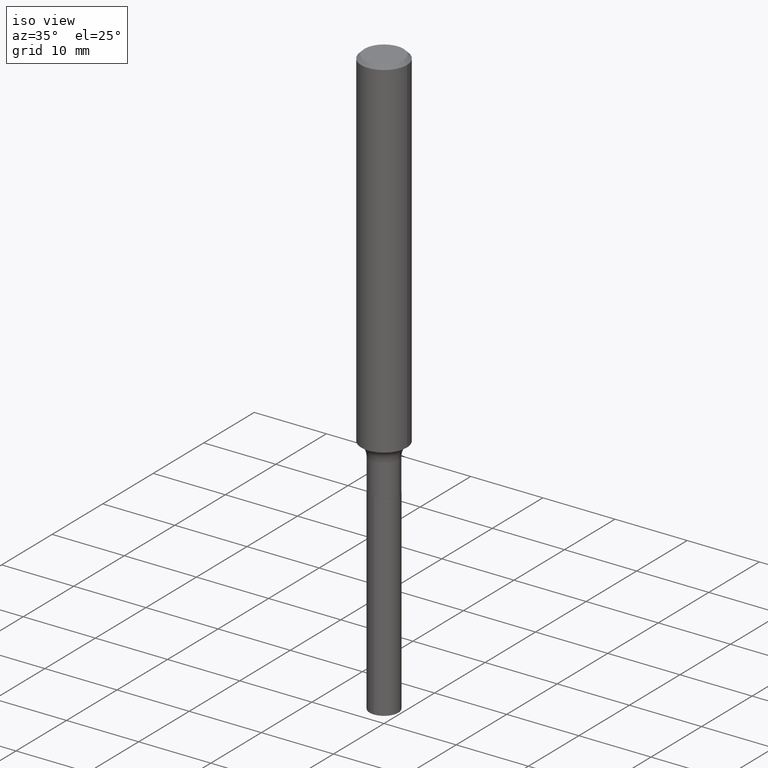
[diagram: clean part render]
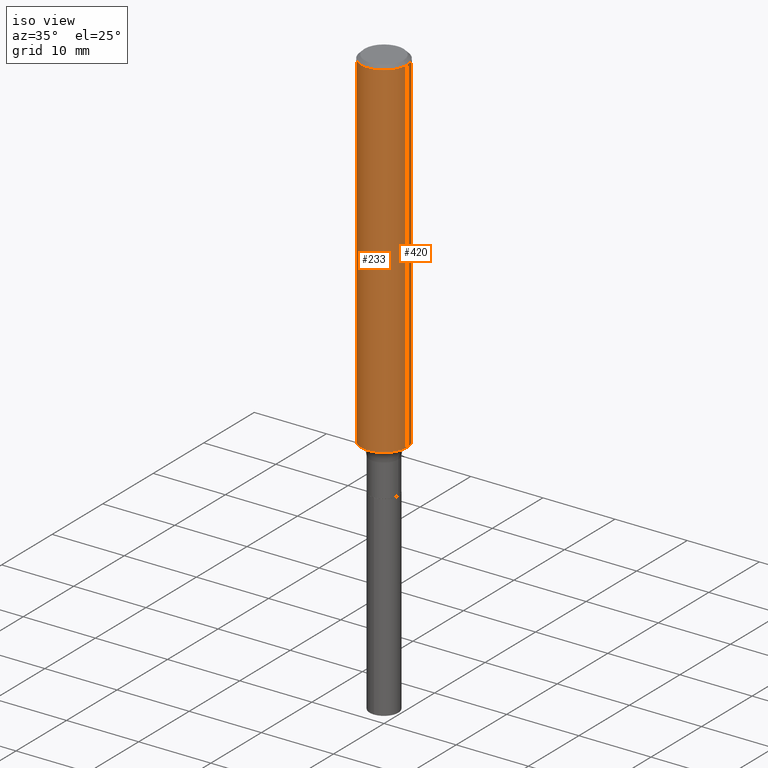
[diagram: same view with one multi-face feature highlighted, each face labeled with its STEP entity id]
A machine part, iso view. The highlighted faces form ONE feature: a constant-radius fillet chain: 2 tangent blend faces with common blend radius 3.175 mm. The faces share edges in the B-rep.
Their STEP definitions:
[1] entity #233 (Cylinder):
#16 = DIRECTION ( 'NONE',  ( -2.445468806185136597E-29, 3.491481338843145583E-15, 1.000000000000000000 ) ) ;
#18 = CIRCLE ( 'NONE', #150, 0.1250000000000000000 ) ;
#39 = VECTOR ( 'NONE', #476, 39.37007874015748143 ) ;
#42 = ORIENTED_EDGE ( 'NONE', *, *, #341, .T. ) ;
#58 = DIRECTION ( 'NONE',  ( 1.000000000000000000, -6.982962677686262766E-15, 0.000000000000000000 ) ) ;
#65 = CARTESIAN_POINT ( 'NONE',  ( -0.1250000000000001388, 8.881784197001262184E-16, -6.148668862818638533E-30 ) ) ;
#68 = DIRECTION ( 'NONE',  ( 1.000000000000000000, -6.982962677686266711E-15, 4.876176775795935793E-29 ) ) ;
#79 = DIRECTION ( 'NONE',  ( -2.445468806185136597E-29, 3.491481338843145583E-15, 1.000000000000000000 ) ) ;
#91 = VERTEX_POINT ( 'NONE', #273 ) ;
#127 = DIRECTION ( 'NONE',  ( -2.445468806185136597E-29, 3.491481338843145583E-15, 1.000000000000000000 ) ) ;
#129 = CARTESIAN_POINT ( 'NONE',  ( -0.1250000000000000000, -2.470309355251892181E-15, -0.01875000000000014155 ) ) ;
#150 = AXIS2_PLACEMENT_3D ( 'NONE', #191, #79, #377 ) ;
#191 = CARTESIAN_POINT ( 'NONE',  ( 4.585254011597165626E-31, -6.546527510330947764E-17, -0.01875000000000014155 ) ) ;
#200 = LINE ( 'NONE', #65, #487 ) ;
#203 = CARTESIAN_POINT ( 'NONE',  ( 4.658785000533512367E-29, -6.651510274800731204E-15, -1.905068258793735092 ) ) ;
#220 = EDGE_CURVE ( 'NONE', #451, #91, #481, .T. ) ;
#233 = ADVANCED_FACE ( 'NONE', ( #436 ), #438, .T. ) ;
#240 = AXIS2_PLACEMENT_3D ( 'NONE', #465, #127, #68 ) ;
#246 = CARTESIAN_POINT ( 'NONE',  ( -0.1250000000000003331, -5.763331855100603605E-15, -1.905068258793735092 ) ) ;
#247 = CARTESIAN_POINT ( 'NONE',  ( 0.1250000000000000000, -9.383356098140928781E-16, -0.01875000000000014155 ) ) ;
#248 = DIRECTION ( 'NONE',  ( -2.445468806185136877E-29, 3.491481338843145188E-15, 1.000000000000000000 ) ) ;
#254 = AXIS2_PLACEMENT_3D ( 'NONE', #203, #16, #58 ) ;
#264 = ORIENTED_EDGE ( 'NONE', *, *, #379, .F. ) ;
#273 = CARTESIAN_POINT ( 'NONE',  ( 0.1250000000000003331, -7.524380609511516120E-15, -1.905068258793735092 ) ) ;
#281 = ORIENTED_EDGE ( 'NONE', *, *, #220, .T. ) ;
#313 = ORIENTED_EDGE ( 'NONE', *, *, #454, .F. ) ;
#323 = CARTESIAN_POINT ( 'NONE',  ( 0.1250000000000001388, -8.728703347107843249E-16, 6.095220969744926748E-30 ) ) ;
#341 = EDGE_CURVE ( 'NONE', #91, #354, #357, .T. ) ;
#354 = VERTEX_POINT ( 'NONE', #247 ) ;
#357 = LINE ( 'NONE', #323, #39 ) ;
#377 = DIRECTION ( 'NONE',  ( 1.000000000000000000, -6.982962677686266711E-15, 0.000000000000000000 ) ) ;
#379 = EDGE_CURVE ( 'NONE', #456, #354, #18, .T. ) ;
#436 = FACE_OUTER_BOUND ( 'NONE', #449, .T. ) ;
#438 = CYLINDRICAL_SURFACE ( 'NONE', #240, 0.1250000000000001388 ) ;
#449 = EDGE_LOOP ( 'NONE', ( #313, #281, #42, #264 ) ) ;
#451 = VERTEX_POINT ( 'NONE', #246 ) ;
#454 = EDGE_CURVE ( 'NONE', #451, #456, #200, .T. ) ;
#456 = VERTEX_POINT ( 'NONE', #129 ) ;
#465 = CARTESIAN_POINT ( 'NONE',  ( 0.000000000000000000, 0.000000000000000000, 0.000000000000000000 ) ) ;
#476 = DIRECTION ( 'NONE',  ( -2.445468806185136877E-29, 3.491481338843145188E-15, 1.000000000000000000 ) ) ;
#481 = CIRCLE ( 'NONE', #254, 0.1250000000000002776 ) ;
#487 = VECTOR ( 'NONE', #248, 39.37007874015748143 ) ;
[2] entity #420 (Cylinder):
#17 = EDGE_LOOP ( 'NONE', ( #275, #466, #384, #459 ) ) ;
#39 = VECTOR ( 'NONE', #476, 39.37007874015748143 ) ;
#47 = DIRECTION ( 'NONE',  ( 1.000000000000000000, -6.982962677686262766E-15, 0.000000000000000000 ) ) ;
#65 = CARTESIAN_POINT ( 'NONE',  ( -0.1250000000000001388, 8.881784197001262184E-16, -6.148668862818638533E-30 ) ) ;
#83 = CARTESIAN_POINT ( 'NONE',  ( 4.658785000533512367E-29, -6.651510274800731204E-15, -1.905068258793735092 ) ) ;
#91 = VERTEX_POINT ( 'NONE', #273 ) ;
#97 = EDGE_CURVE ( 'NONE', #91, #451, #141, .T. ) ;
#129 = CARTESIAN_POINT ( 'NONE',  ( -0.1250000000000000000, -2.470309355251892181E-15, -0.01875000000000014155 ) ) ;
#141 = CIRCLE ( 'NONE', #369, 0.1250000000000002776 ) ;
#142 = AXIS2_PLACEMENT_3D ( 'NONE', #359, #421, #238 ) ;
#166 = FACE_OUTER_BOUND ( 'NONE', #17, .T. ) ;
#172 = CARTESIAN_POINT ( 'NONE',  ( 4.585254011597165626E-31, -6.546527510330947764E-17, -0.01875000000000014155 ) ) ;
#200 = LINE ( 'NONE', #65, #487 ) ;
#219 = DIRECTION ( 'NONE',  ( 1.000000000000000000, -6.982962677686266711E-15, 0.000000000000000000 ) ) ;
#229 = CIRCLE ( 'NONE', #364, 0.1250000000000000000 ) ;
#234 = DIRECTION ( 'NONE',  ( -2.445468806185136597E-29, 3.491481338843145583E-15, 1.000000000000000000 ) ) ;
#238 = DIRECTION ( 'NONE',  ( 1.000000000000000000, -6.982962677686266711E-15, 4.876176775795935793E-29 ) ) ;
#246 = CARTESIAN_POINT ( 'NONE',  ( -0.1250000000000003331, -5.763331855100603605E-15, -1.905068258793735092 ) ) ;
#247 = CARTESIAN_POINT ( 'NONE',  ( 0.1250000000000000000, -9.383356098140928781E-16, -0.01875000000000014155 ) ) ;
#248 = DIRECTION ( 'NONE',  ( -2.445468806185136877E-29, 3.491481338843145188E-15, 1.000000000000000000 ) ) ;
#273 = CARTESIAN_POINT ( 'NONE',  ( 0.1250000000000003331, -7.524380609511516120E-15, -1.905068258793735092 ) ) ;
#275 = ORIENTED_EDGE ( 'NONE', *, *, #97, .T. ) ;
#323 = CARTESIAN_POINT ( 'NONE',  ( 0.1250000000000001388, -8.728703347107843249E-16, 6.095220969744926748E-30 ) ) ;
#325 = DIRECTION ( 'NONE',  ( -2.445468806185136597E-29, 3.491481338843145583E-15, 1.000000000000000000 ) ) ;
#341 = EDGE_CURVE ( 'NONE', #91, #354, #357, .T. ) ;
#354 = VERTEX_POINT ( 'NONE', #247 ) ;
#355 = EDGE_CURVE ( 'NONE', #354, #456, #229, .T. ) ;
#357 = LINE ( 'NONE', #323, #39 ) ;
#359 = CARTESIAN_POINT ( 'NONE',  ( 0.000000000000000000, 0.000000000000000000, 0.000000000000000000 ) ) ;
#364 = AXIS2_PLACEMENT_3D ( 'NONE', #172, #325, #219 ) ;
#369 = AXIS2_PLACEMENT_3D ( 'NONE', #83, #234, #47 ) ;
#384 = ORIENTED_EDGE ( 'NONE', *, *, #355, .F. ) ;
#420 = ADVANCED_FACE ( 'NONE', ( #166 ), #461, .T. ) ;
#421 = DIRECTION ( 'NONE',  ( -2.445468806185136597E-29, 3.491481338843145583E-15, 1.000000000000000000 ) ) ;
#451 = VERTEX_POINT ( 'NONE', #246 ) ;
#454 = EDGE_CURVE ( 'NONE', #451, #456, #200, .T. ) ;
#456 = VERTEX_POINT ( 'NONE', #129 ) ;
#459 = ORIENTED_EDGE ( 'NONE', *, *, #341, .F. ) ;
#461 = CYLINDRICAL_SURFACE ( 'NONE', #142, 0.1250000000000001388 ) ;
#466 = ORIENTED_EDGE ( 'NONE', *, *, #454, .T. ) ;
#476 = DIRECTION ( 'NONE',  ( -2.445468806185136877E-29, 3.491481338843145188E-15, 1.000000000000000000 ) ) ;
#487 = VECTOR ( 'NONE', #248, 39.37007874015748143 ) ;